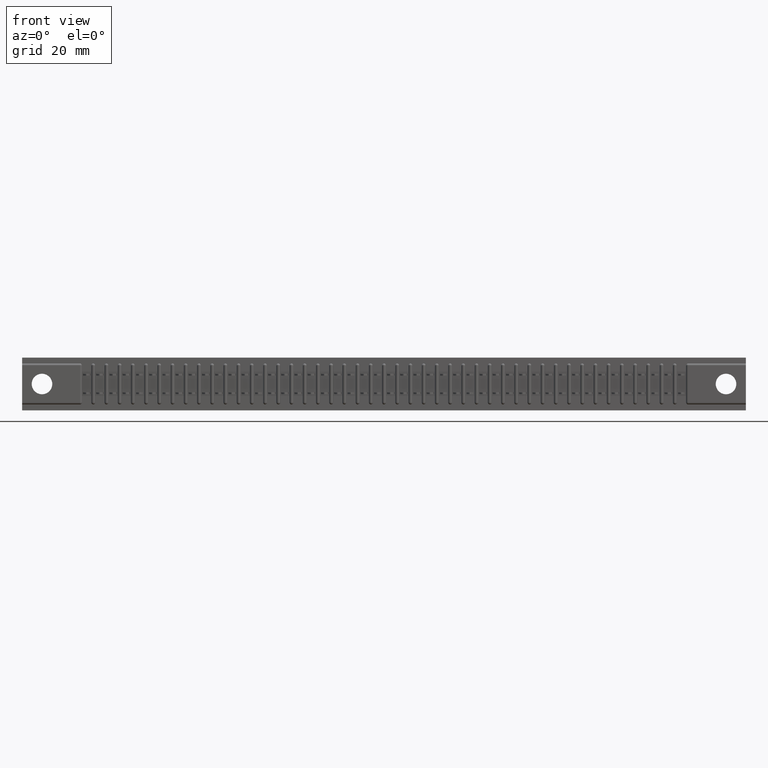
[diagram: clean part render]
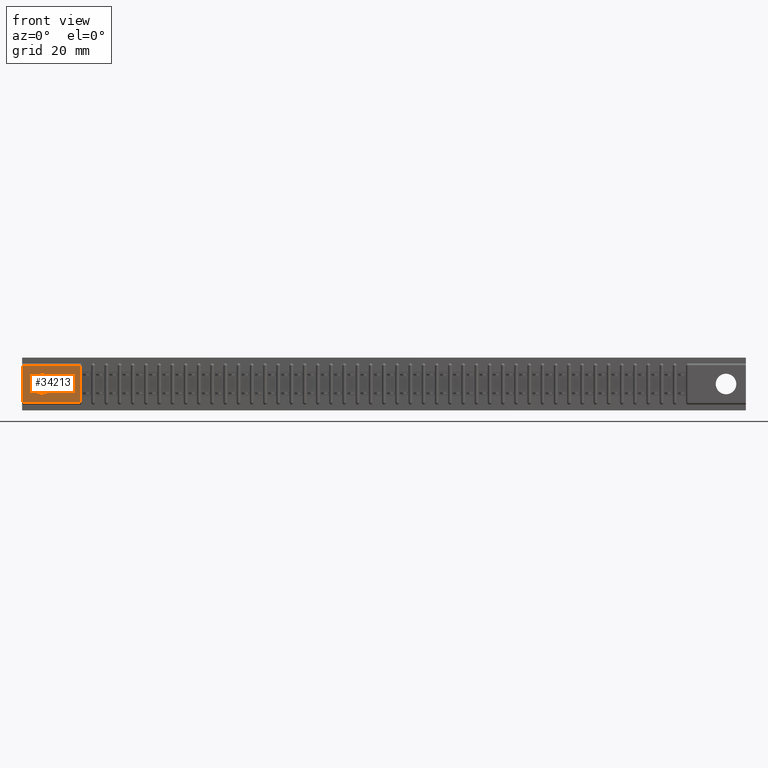
[diagram: same view with one face highlighted and labeled with its STEP entity id]
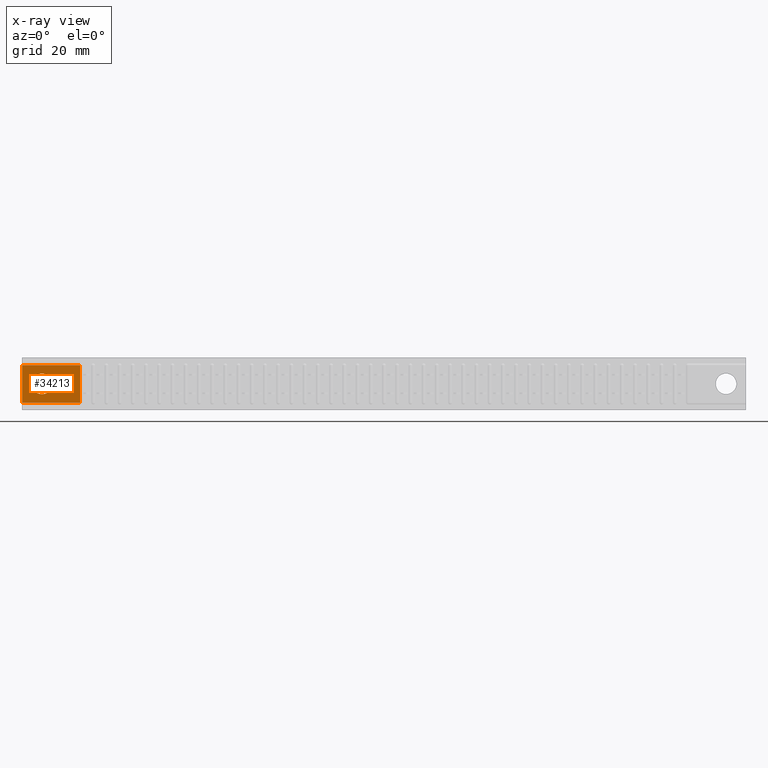
[diagram: x-ray of the same camera — body ghosted, the highlighted face saturated]
A machine part, front view. The second image highlights one B-rep face of the part: STEP entity #34213.
The next image is the same camera in x-ray: the body ghosted, the highlighted face saturated — about 0% of this face is hidden behind the body in this view.
In plain terms, the highlighted planar face has unit normal (0, -1, 0).
Its self-contained STEP definition (entity closure, byte-faithful):
#437 = DIRECTION ( 'NONE',  ( -0.0000000000000000000, -0.0000000000000000000, 1.000000000000000000 ) ) ;
#819 = AXIS2_PLACEMENT_3D ( 'NONE', #33722, #7939, #38009 ) ;
#853 = CARTESIAN_POINT ( 'NONE',  ( 0.1499999999999998000, 0.0000000000000000000, -0.2780000000000000200 ) ) ;
#2049 = CARTESIAN_POINT ( 'NONE',  ( 0.1499999999999997700, 0.0000000000000000000, -0.2000000000000000100 ) ) ;
#2528 = AXIS2_PLACEMENT_3D ( 'NONE', #2049, #32124, #6341 ) ;
#3293 = VECTOR ( 'NONE', #437, 39.37007874015748100 ) ;
#3399 = EDGE_LOOP ( 'NONE', ( #39341, #37351 ) ) ;
#4551 = CARTESIAN_POINT ( 'NONE',  ( 0.0000000000000000000, 0.0000000000000000000, 0.0000000000000000000 ) ) ;
#6341 = DIRECTION ( 'NONE',  ( 0.0000000000000000000, 0.0000000000000000000, -1.000000000000000000 ) ) ;
#7939 = DIRECTION ( 'NONE',  ( -0.0000000000000000000, 1.000000000000000000, -0.0000000000000000000 ) ) ;
#11602 = EDGE_CURVE ( 'NONE', #36372, #32740, #17484, .T. ) ;
#12455 = CARTESIAN_POINT ( 'NONE',  ( 0.0000000000000000000, 0.0000000000000000000, -0.05999999999999997700 ) ) ;
#14750 = EDGE_CURVE ( 'NONE', #30594, #32740, #54516, .T. ) ;
#16555 = AXIS2_PLACEMENT_3D ( 'NONE', #29284, #20813, #50775 ) ;
#17484 = LINE ( 'NONE', #4551, #3293 ) ;
#18317 = CARTESIAN_POINT ( 'NONE',  ( 0.0000000000000000000, 0.0000000000000000000, -0.05999999999999997700 ) ) ;
#19310 = LINE ( 'NONE', #42301, #52107 ) ;
#19543 = EDGE_CURVE ( 'NONE', #36372, #31005, #23268, .T. ) ;
#20053 = VERTEX_POINT ( 'NONE', #853 ) ;
#20418 = VECTOR ( 'NONE', #42481, 39.37007874015748100 ) ;
#20813 = DIRECTION ( 'NONE',  ( 0.0000000000000000000, -1.000000000000000000, 0.0000000000000000000 ) ) ;
#21085 = EDGE_CURVE ( 'NONE', #31005, #30594, #19310, .T. ) ;
#23268 = LINE ( 'NONE', #49522, #44673 ) ;
#25917 = ORIENTED_EDGE ( 'NONE', *, *, #19543, .T. ) ;
#27295 = ORIENTED_EDGE ( 'NONE', *, *, #21085, .T. ) ;
#27829 = EDGE_LOOP ( 'NONE', ( #25917, #27295, #52689, #33964 ) ) ;
#29284 = CARTESIAN_POINT ( 'NONE',  ( 0.0000000000000000000, 0.0000000000000000000, -0.4000000000000000200 ) ) ;
#30079 = CARTESIAN_POINT ( 'NONE',  ( 0.4372500000000004200, 0.0000000000000000000, -0.05999999999999997700 ) ) ;
#30594 = VERTEX_POINT ( 'NONE', #30079 ) ;
#31005 = VERTEX_POINT ( 'NONE', #36764 ) ;
#31506 = CIRCLE ( 'NONE', #2528, 0.07800000000000000000 ) ;
#32124 = DIRECTION ( 'NONE',  ( -0.0000000000000000000, 1.000000000000000000, -0.0000000000000000000 ) ) ;
#32740 = VERTEX_POINT ( 'NONE', #18317 ) ;
#33577 = VERTEX_POINT ( 'NONE', #37727 ) ;
#33722 = CARTESIAN_POINT ( 'NONE',  ( 0.1499999999999997700, 0.0000000000000000000, -0.2000000000000000100 ) ) ;
#33964 = ORIENTED_EDGE ( 'NONE', *, *, #11602, .F. ) ;
#34213 = ADVANCED_FACE ( 'NONE', ( #43575, #53594 ), #46445, .T. ) ;
#35049 = EDGE_CURVE ( 'NONE', #20053, #33577, #31506, .T. ) ;
#36372 = VERTEX_POINT ( 'NONE', #45801 ) ;
#36764 = CARTESIAN_POINT ( 'NONE',  ( 0.4372500000000003600, 0.0000000000000000000, -0.3399999999999999700 ) ) ;
#37351 = ORIENTED_EDGE ( 'NONE', *, *, #35049, .T. ) ;
#37727 = CARTESIAN_POINT ( 'NONE',  ( 0.1499999999999997700, 0.0000000000000000000, -0.1220000000000000100 ) ) ;
#38009 = DIRECTION ( 'NONE',  ( 0.0000000000000000000, 0.0000000000000000000, -1.000000000000000000 ) ) ;
#39341 = ORIENTED_EDGE ( 'NONE', *, *, #49440, .T. ) ;
#42301 = CARTESIAN_POINT ( 'NONE',  ( 0.4372500000000004200, 0.0000000000000000000, -0.05999999999999997700 ) ) ;
#42481 = DIRECTION ( 'NONE',  ( -1.000000000000000000, 0.0000000000000000000, 0.0000000000000000000 ) ) ;
#43575 = FACE_OUTER_BOUND ( 'NONE', #27829, .T. ) ;
#44673 = VECTOR ( 'NONE', #53762, 39.37007874015748100 ) ;
#44945 = CIRCLE ( 'NONE', #819, 0.07800000000000000000 ) ;
#45801 = CARTESIAN_POINT ( 'NONE',  ( 0.0000000000000000000, 0.0000000000000000000, -0.3399999999999999700 ) ) ;
#46445 = PLANE ( 'NONE',  #16555 ) ;
#46586 = DIRECTION ( 'NONE',  ( -0.0000000000000000000, -0.0000000000000000000, 1.000000000000000000 ) ) ;
#49440 = EDGE_CURVE ( 'NONE', #33577, #20053, #44945, .T. ) ;
#49522 = CARTESIAN_POINT ( 'NONE',  ( 5.475000000000001400, 0.0000000000000000000, -0.3399999999999999700 ) ) ;
#50775 = DIRECTION ( 'NONE',  ( 0.0000000000000000000, -0.0000000000000000000, -1.000000000000000000 ) ) ;
#52107 = VECTOR ( 'NONE', #46586, 39.37007874015748100 ) ;
#52689 = ORIENTED_EDGE ( 'NONE', *, *, #14750, .T. ) ;
#53594 = FACE_BOUND ( 'NONE', #3399, .T. ) ;
#53762 = DIRECTION ( 'NONE',  ( 1.000000000000000000, -0.0000000000000000000, -0.0000000000000000000 ) ) ;
#54516 = LINE ( 'NONE', #12455, #20418 ) ;